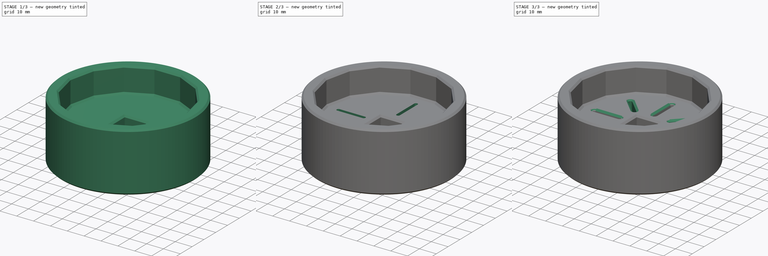
[diagram: build sequence overview — one tinted view per stage of 3, left to right]
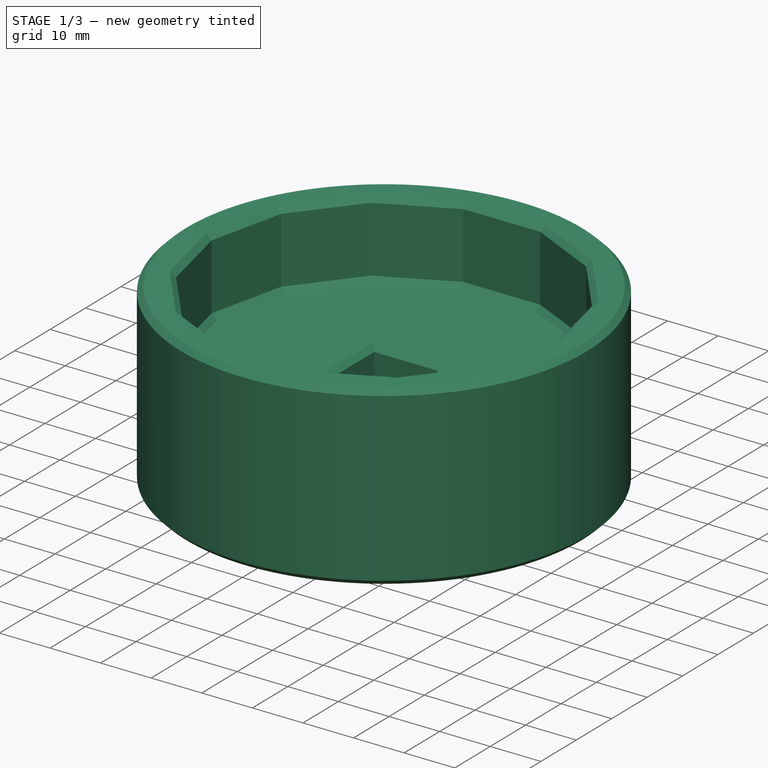
[diagram: stage 1 of 3 — iso view after this stage's code; geometry added in this stage tinted green]
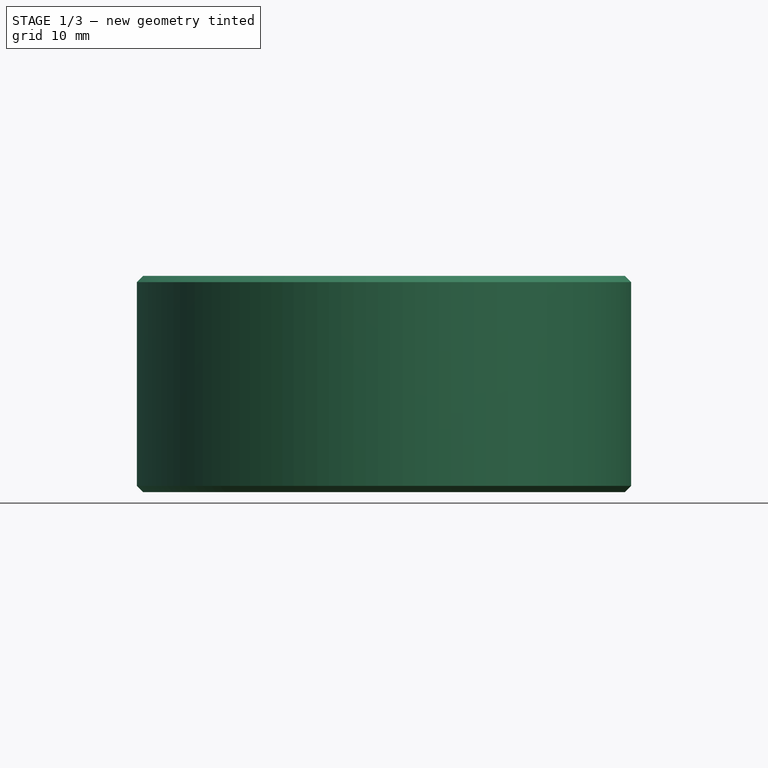
[diagram: stage 1 of 3 — front view after this stage's code; geometry added in this stage tinted green]
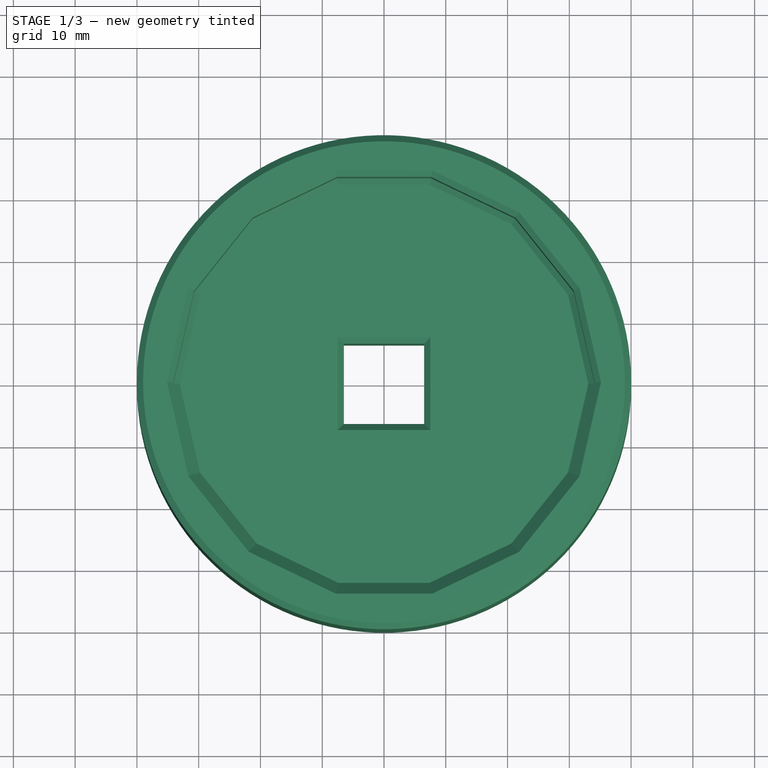
[diagram: stage 1 of 3 — top view after this stage's code; geometry added in this stage tinted green]
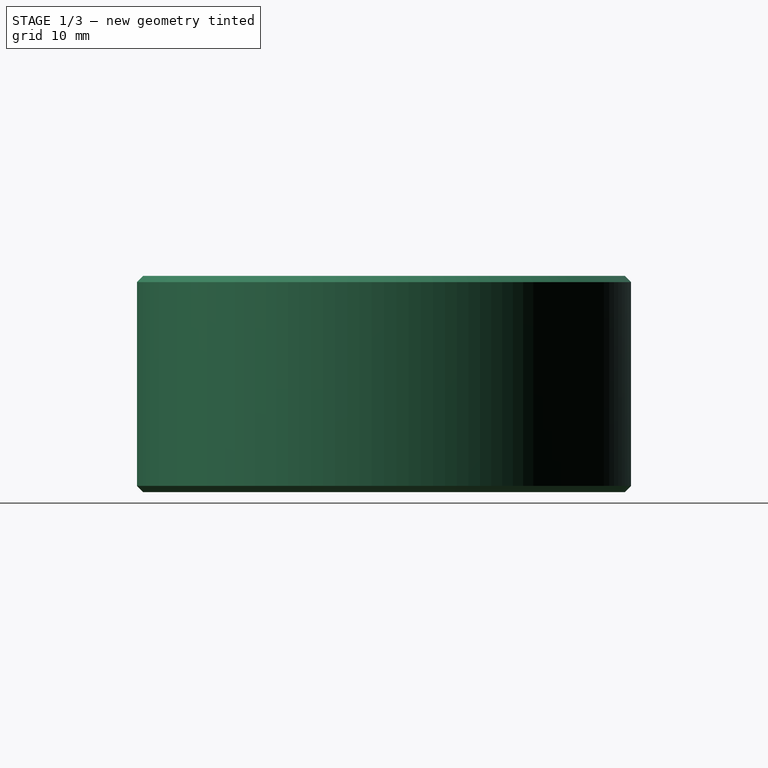
[diagram: stage 1 of 3 — right view after this stage's code; geometry added in this stage tinted green]
FCSTD DOCUMENT  (FreeCAD 0.21R33675 (Git))
Label: oil-filter-wrench
License: All rights reserved
LicenseURL: http://en.wikipedia.org/wiki/All_rights_reserved
objects: Sketcher::SketchObject×4, PartDesign::Pad×2, PartDesign::Chamfer×2, PartDesign::Pocket×2, PartDesign::PolarPattern×2, PartDesign::Body×1
note: 19 computed .brp shape members not serialized (recipe doc carries the construction recipe); baked Part::Feature solids carry a one-line shape summary decoded from their .brp

FEATURE [Sketcher::SketchObject] Sketch
  FullyConstrained = true
  MapMode = 5
  Support = -> [XY_Plane]
  sketch-geometry (16):
    g0: LineSegment StartX=30.7276 StartY=-14.7976 StartZ=0 EndX=34.1051 EndY=0 EndZ=0
    g1: LineSegment StartX=34.1051 StartY=0 StartZ=0 EndX=30.7276 EndY=14.7976 EndZ=0
    g2: LineSegment StartX=30.7276 StartY=14.7976 StartZ=0 EndX=21.2642 EndY=26.6644 EndZ=0
    g3: LineSegment StartX=21.2642 StartY=26.6644 StartZ=0 EndX=7.5891 EndY=33.25 EndZ=0
    g4: LineSegment StartX=7.5891 StartY=33.25 StartZ=0 EndX=-7.5891 EndY=33.25 EndZ=0
    g5: LineSegment StartX=-7.5891 StartY=33.25 StartZ=0 EndX=-21.2642 EndY=26.6644 EndZ=0
    g6: LineSegment StartX=-21.2642 StartY=26.6644 StartZ=0 EndX=-30.7276 EndY=14.7976 EndZ=0
    g7: LineSegment StartX=-30.7276 StartY=14.7976 StartZ=0 EndX=-34.1051 EndY=3.6e-15 EndZ=0
    g8: LineSegment StartX=-34.1051 StartY=3.6e-15 StartZ=0 EndX=-30.7276 EndY=-14.7976 EndZ=0
    g9: LineSegment StartX=-30.7276 StartY=-14.7976 StartZ=0 EndX=-21.2642 EndY=-26.6644 EndZ=0
    g10: LineSegment StartX=-21.2642 StartY=-26.6644 StartZ=0 EndX=-7.5891 EndY=-33.25 EndZ=0
    g11: LineSegment StartX=-7.5891 StartY=-33.25 StartZ=0 EndX=7.5891 EndY=-33.25 EndZ=0
    g12: LineSegment StartX=7.5891 StartY=-33.25 StartZ=0 EndX=21.2642 EndY=-26.6644 EndZ=0
    g13: LineSegment StartX=21.2642 StartY=-26.6644 StartZ=0 EndX=30.7276 EndY=-14.7976 EndZ=0
    g14: Circle CenterX=0 CenterY=0 CenterZ=0 NormalX=0 NormalY=0 NormalZ=1 AngleXU=0 Radius=34.1051
    g15: Circle CenterX=0 CenterY=0 CenterZ=0 NormalX=0 NormalY=0 NormalZ=1 AngleXU=0 Radius=40
  constraints (34):
    c: Coincident(g0,g1)
    c: Coincident(g1,g2)
    c: Coincident(g2,g3)
    c: Coincident(g3,g4)
    c: Coincident(g4,g5)
    c: Coincident(g5,g6)
    c: Coincident(g6,g7)
    c: Coincident(g7,g8)
    c: Coincident(g8,g9)
    c: Coincident(g9,g10)
    c: Coincident(g10,g11)
    c: Coincident(g11,g12)
    c: Coincident(g12,g13)
    c: Coincident(g13,g0)
    c: Equal(g0, g1-g13) x13
    c: PointOnObject(g0,g14)
    c: PointOnObject(g1,g14)
    c: PointOnObject(g2,g14)
    c: PointOnObject(g3,g14)
    c: PointOnObject(g4,g14)
    c: PointOnObject(g5,g14)
    c: PointOnObject(g6,g14)
    c: PointOnObject(g7,g14)
    c: PointOnObject(g8,g14)
    c: PointOnObject(g9,g14)
    c: PointOnObject(g10,g14)
    c: PointOnObject(g11,g14)
    c: PointOnObject(g12,g14)
    c: PointOnObject(g13,g14)
    c: Coincident(g14,g-1)
    c: Horizontal(g0,g14)
    c: Coincident(g15,g14)
    c: Radius(g15) = 40
    c: DistanceY(g11,g3) = 66.5
FEATURE [PartDesign::Pad] Pad
  Direction = (0,0,1)
  Length = 15
  Length2 = 10
  Profile = -> Sketch
  ReferenceAxis = -> Sketch [N_Axis]
  Type = 0
FEATURE [Sketcher::SketchObject] Sketch001
  ExternalGeometry = -> [Pad]
  FullyConstrained = true
  MapMode = 5
  Placement = pos=(0,0,0) rot=(1,0,0;3.14159rad)
  Support = -> [Pad]
  sketch-geometry (5):
    g0: Circle CenterX=0 CenterY=0 CenterZ=0 NormalX=0 NormalY=0 NormalZ=1 AngleXU=0 Radius=40
    g1: LineSegment StartX=-6.5 StartY=6.5 StartZ=0 EndX=6.5 EndY=6.5 EndZ=0
    g2: LineSegment StartX=6.5 StartY=6.5 StartZ=0 EndX=6.5 EndY=-6.5 EndZ=0
    g3: LineSegment StartX=6.5 StartY=-6.5 StartZ=0 EndX=-6.5 EndY=-6.5 EndZ=0
    g4: LineSegment StartX=-6.5 StartY=-6.5 StartZ=0 EndX=-6.5 EndY=6.5 EndZ=0
  constraints (14):
    c: Coincident(g0,g-3)
    c: Equal(g0,g-3)
    c: Coincident(g1,g2)
    c: Coincident(g2,g3)
    c: Coincident(g3,g4)
    c: Coincident(g4,g1)
    c: Horizontal(g1)
    c: Horizontal(g3)
    c: Vertical(g2)
    c: Vertical(g4)
    c: DistanceX(g1,g1) = 13
    c: Equal(g1,g2)
    c: DistanceX(g1,g0) = 6.5
    c: DistanceY(g0,g1) = 6.5
FEATURE [PartDesign::Pad] Pad001
  BaseFeature = -> Pad
  Direction = (0,0,-1)
  Length = 20
  Length2 = 10
  Profile = -> Sketch001
  ReferenceAxis = -> Sketch001 [N_Axis]
  Type = 0
FEATURE [PartDesign::Chamfer] Chamfer
  Angle = 45
  Base = -> Pad001 [Edge3,Face4,Face3,Face23]
  BaseFeature = -> Pad001
  ChamferType = 0
  FlipDirection = false
  Size = 1
  Size2 = 1
  SupportTransform = false
  UseAllEdges = false
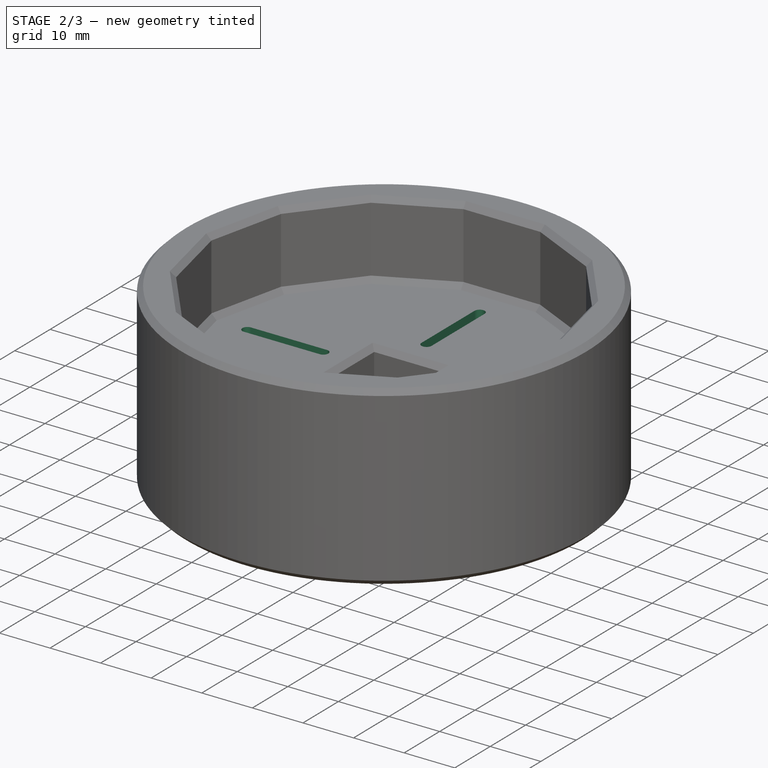
[diagram: stage 2 of 3 — iso view after this stage's code; geometry added in this stage tinted green]
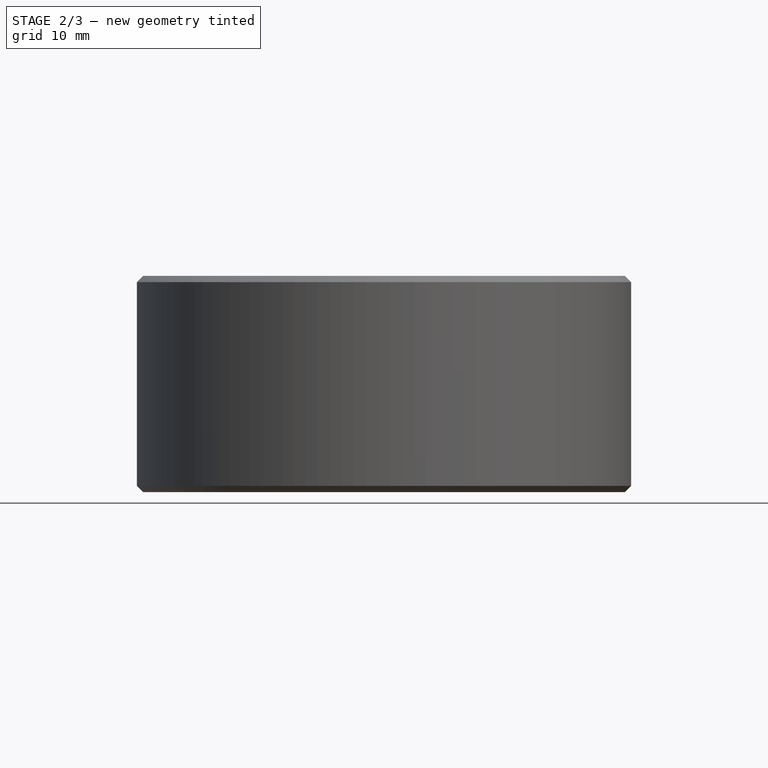
[diagram: stage 2 of 3 — front view after this stage's code; geometry added in this stage tinted green]
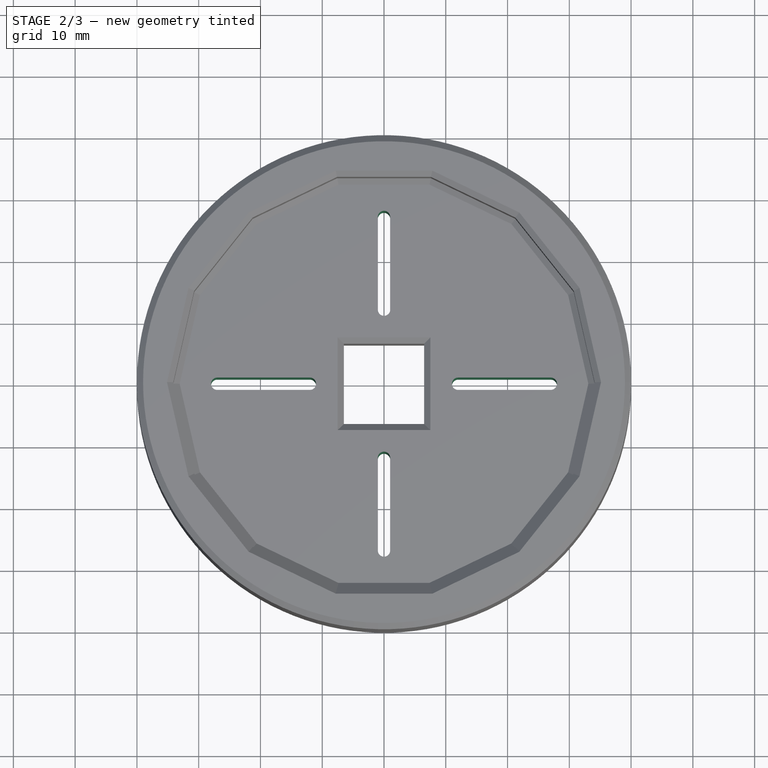
[diagram: stage 2 of 3 — top view after this stage's code; geometry added in this stage tinted green]
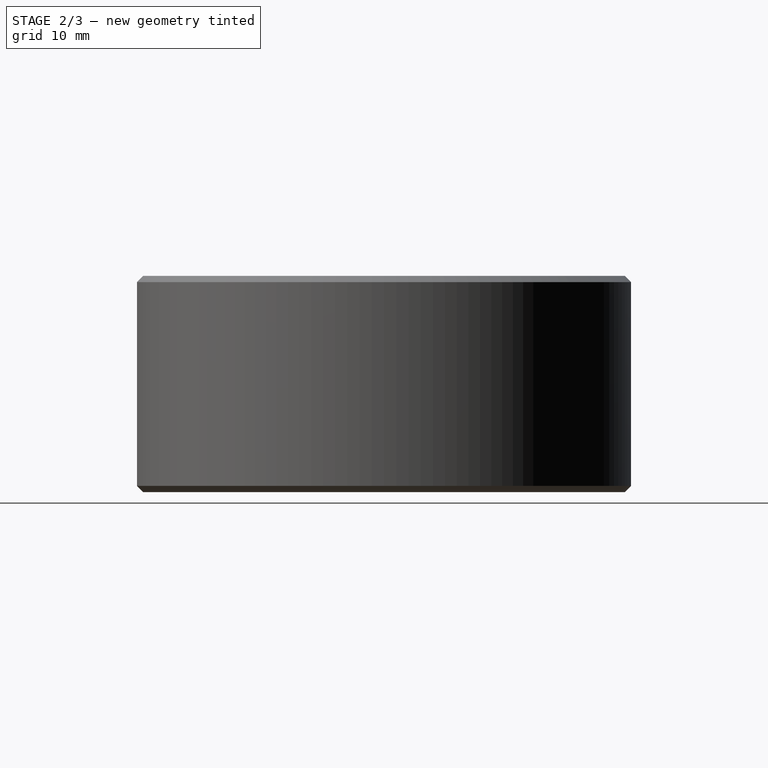
[diagram: stage 2 of 3 — right view after this stage's code; geometry added in this stage tinted green]
FEATURE [Sketcher::SketchObject] Sketch002
  FullyConstrained = true
  MapMode = 5
  Support = -> [Chamfer]
  sketch-geometry (4):
    g0: ArcOfCircle CenterX=0 CenterY=12 CenterZ=0 NormalX=0 NormalY=0 NormalZ=1 AngleXU=0 Radius=1 StartAngle=3.14159 EndAngle=6.28319
    g1: ArcOfCircle CenterX=0 CenterY=27 CenterZ=0 NormalX=0 NormalY=0 NormalZ=1 AngleXU=0 Radius=1 StartAngle=5.17e-14 EndAngle=3.14159
    g2: LineSegment StartX=1 StartY=12 StartZ=0 EndX=1 EndY=27 EndZ=0
    g3: LineSegment StartX=-1 StartY=27 StartZ=0 EndX=-1 EndY=12 EndZ=0
  constraints (10):
    c: Tangent(g0,g2) = -1.5708
    c: Tangent(g2,g1) = -1.5708
    c: Tangent(g1,g3) = -1.5708
    c: Tangent(g3,g0) = -1.5708
    c: Equal(g0,g1)
    c: PointOnObject(g0,g-2)
    c: PointOnObject(g1,g-2)
    c: Radius(g1) = 1
    c: DistanceY(g-1,g0) = 12
    c: DistanceY(g0,g1) = 15
FEATURE [PartDesign::Pocket] Pocket
  BaseFeature = -> Chamfer
  Direction = (0,0,-1)
  Length = 5
  Length2 = 5
  Profile = -> Sketch002
  ReferenceAxis = -> Sketch002 [N_Axis]
  Type = 1
FEATURE [PartDesign::PolarPattern] PolarPattern
  Angle = 360
  Axis = -> Sketch002 [N_Axis]
  BaseFeature = -> Pocket
  Occurrences = 4
  Originals = -> [Pocket]
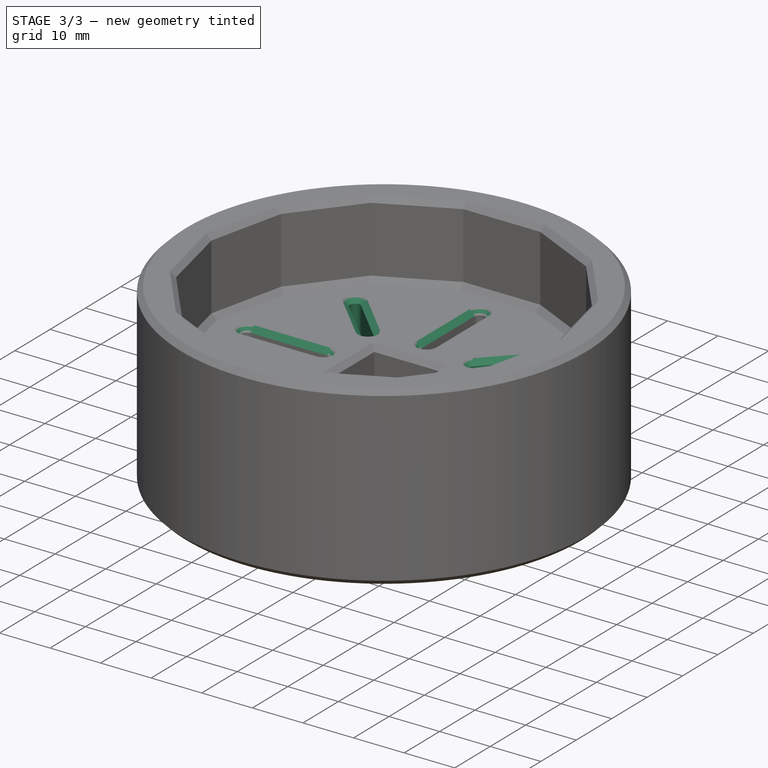
[diagram: stage 3 of 3 — iso view after this stage's code; geometry added in this stage tinted green]
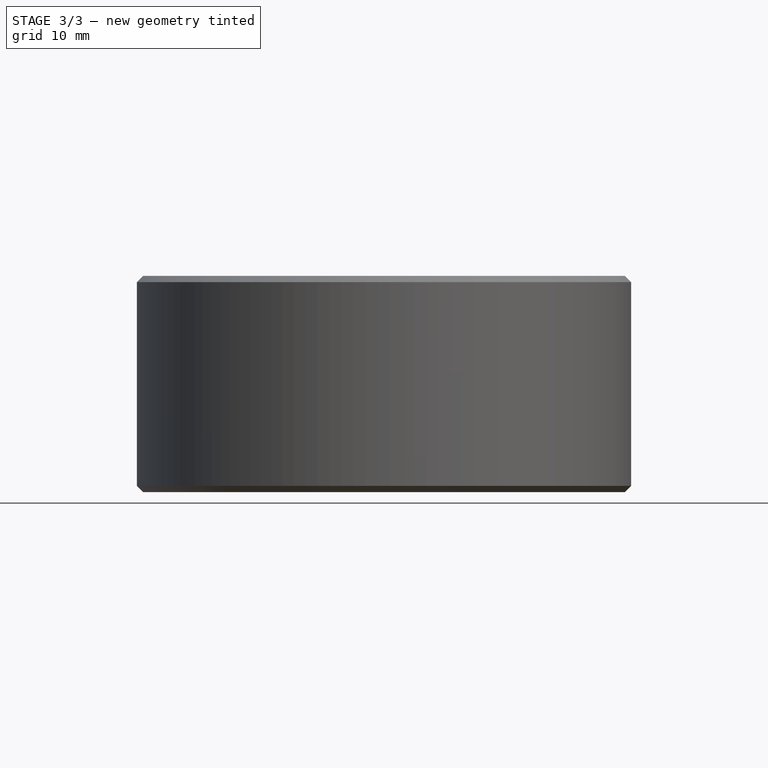
[diagram: stage 3 of 3 — front view after this stage's code; geometry added in this stage tinted green]
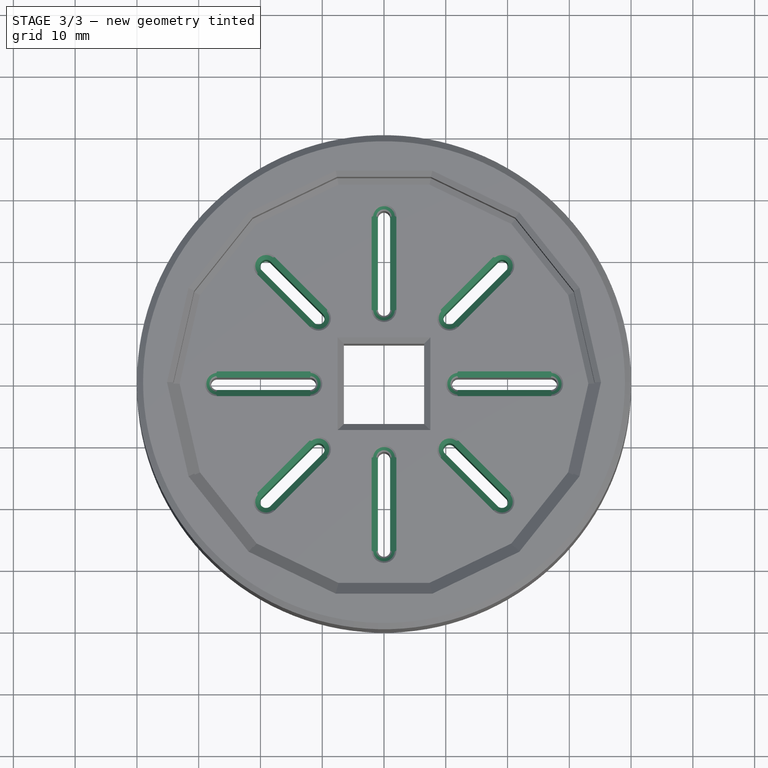
[diagram: stage 3 of 3 — top view after this stage's code; geometry added in this stage tinted green]
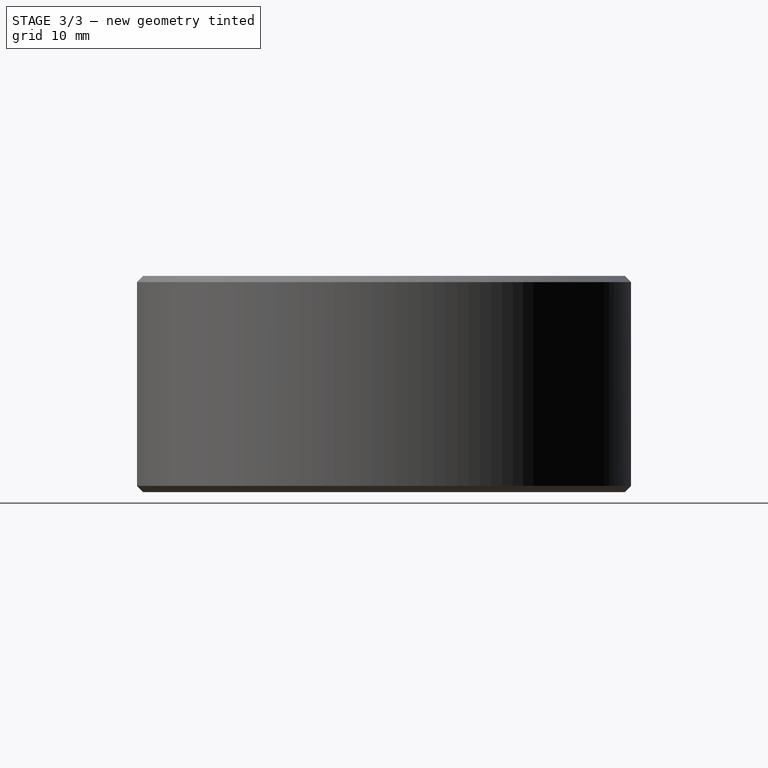
[diagram: stage 3 of 3 — right view after this stage's code; geometry added in this stage tinted green]
FEATURE [Sketcher::SketchObject] Sketch003
  FullyConstrained = true
  MapMode = 5
  Support = -> [PolarPattern]
  sketch-geometry (6):
    g0: ArcOfCircle CenterX=-10.6066 CenterY=10.6066 CenterZ=0 NormalX=0 NormalY=0 NormalZ=1 AngleXU=0 Radius=1 StartAngle=3.92699 EndAngle=7.06858
    g1: ArcOfCircle CenterX=-19.0919 CenterY=19.0919 CenterZ=0 NormalX=0 NormalY=0 NormalZ=1 AngleXU=0 Radius=1 StartAngle=0.785398 EndAngle=3.92699
    g2: LineSegment StartX=-9.89949 StartY=11.3137 StartZ=0 EndX=-18.3848 EndY=19.799 EndZ=0
    g3: LineSegment StartX=-19.799 StartY=18.3848 StartZ=0 EndX=-11.3137 EndY=9.89949 EndZ=0
    g4: LineSegment StartX=-19.0919 StartY=19.0919 StartZ=0 EndX=-10.6066 EndY=10.6066 EndZ=0
    g5: LineSegment StartX=-10.6066 StartY=10.6066 StartZ=0 EndX=0 EndY=0 EndZ=0
  constraints (14):
    c: Tangent(g0,g2) = -1.5708
    c: Tangent(g2,g1) = -1.5708
    c: Tangent(g1,g3) = -1.5708
    c: Tangent(g3,g0) = -1.5708
    c: Equal(g0,g1)
    c: Coincident(g4,g1)
    c: Coincident(g4,g0)
    c: Coincident(g5,g0)
    c: Coincident(g5,g-1)
    c: Parallel(g4,g5)
    c: Angle(g-1,g5) = 2.35619
    c: Radius(g0) = 1
    c: Distance(g5) = 15
    c: Distance(g4) = 12
FEATURE [PartDesign::Pocket] Pocket001
  BaseFeature = -> PolarPattern
  Direction = (0,0,-1)
  Length = 5
  Length2 = 5
  Profile = -> Sketch003
  ReferenceAxis = -> Sketch003 [N_Axis]
  Type = 1
FEATURE [PartDesign::PolarPattern] PolarPattern001
  Angle = 360
  Axis = -> Sketch003 [N_Axis]
  BaseFeature = -> Pocket001
  Occurrences = 4
  Originals = -> [Pocket001]
FEATURE [PartDesign::Chamfer] Chamfer001
  Angle = 45
  Base = -> PolarPattern001 [Edge163,Edge131,Edge121,Edge139,Edge145,Edge179,Edge185,Edge171,Edge63,Edge54,Edge59,Edge75,Edge79,Edge86,Edge83,Edge66]
  BaseFeature = -> PolarPattern001
  ChamferType = 0
  FlipDirection = false
  Size = 1
  Size2 = 1
  SupportTransform = false
  UseAllEdges = false
FEATURE [PartDesign::Body] Body
  Group = -> [Sketch,Pad,Sketch001,Pad001,Chamfer,Sketch002,Pocket,PolarPattern,Sketch003,Pocket001,PolarPattern001,Chamfer001]
  Origin = -> Origin
  Tip = -> Chamfer001
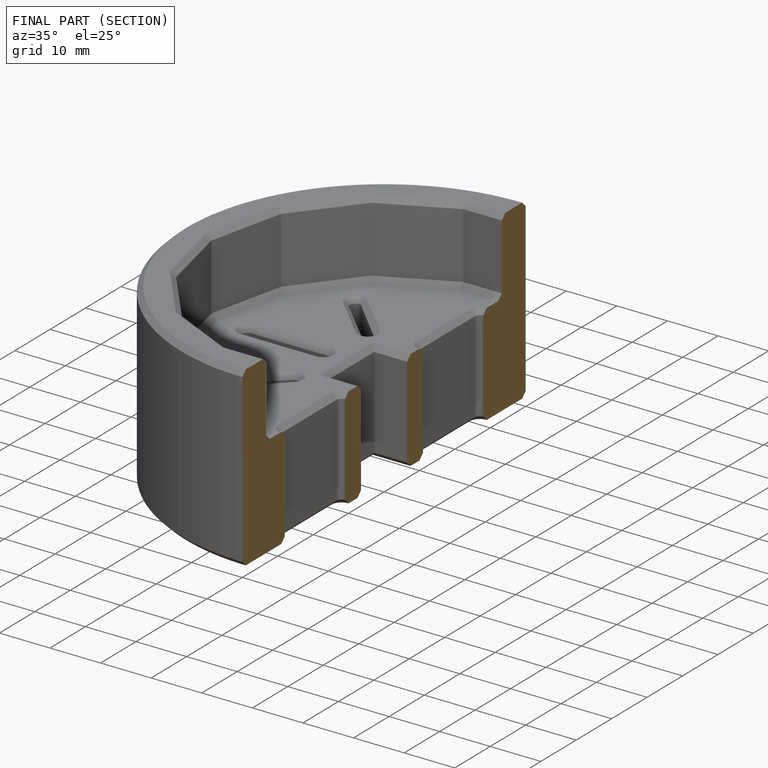
[diagram: finished part — half-section view (interior)]
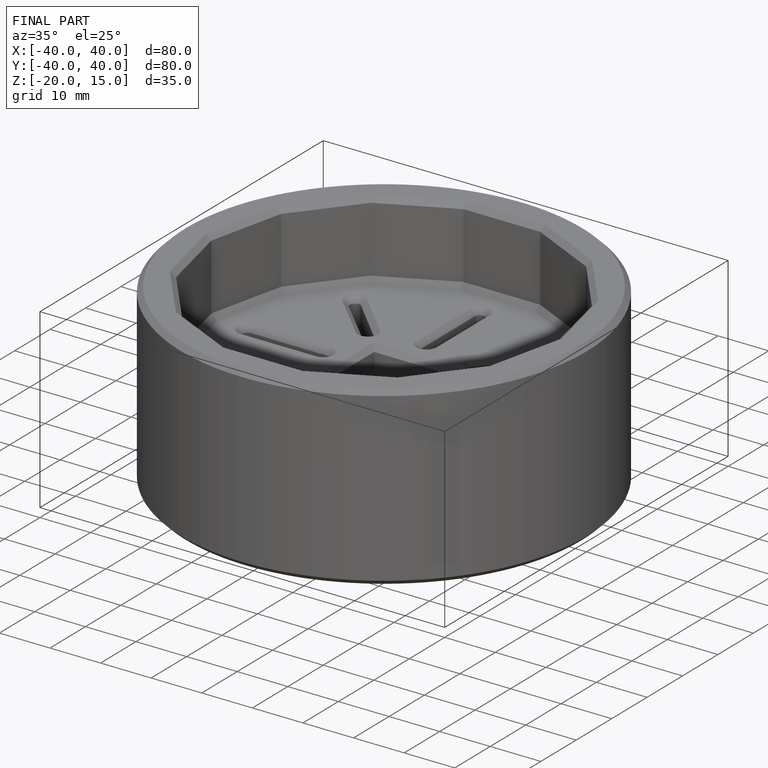
[diagram: finished part — iso view with bounding-box wireframe]
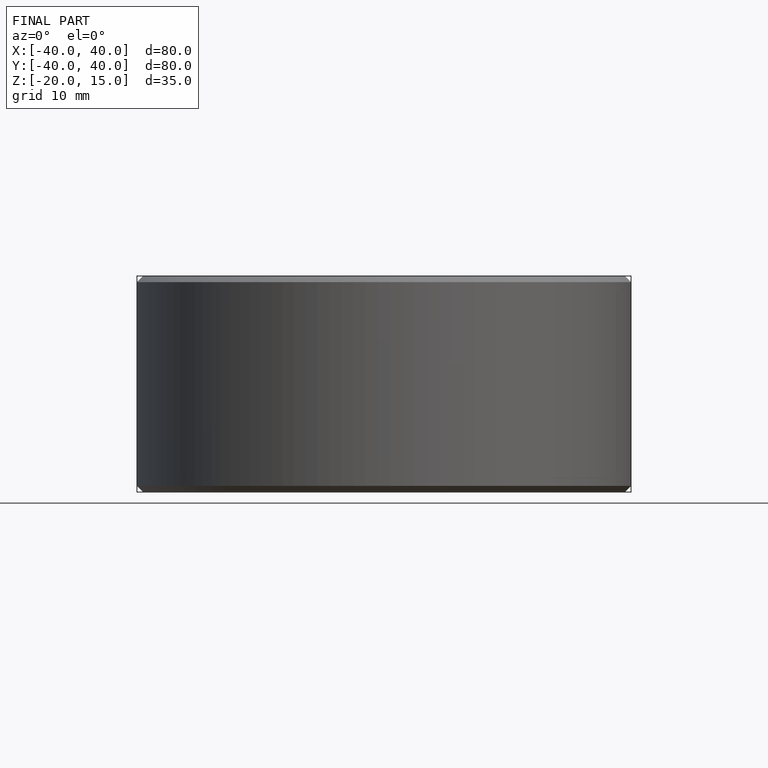
[diagram: finished part — front view with bounding-box wireframe]
